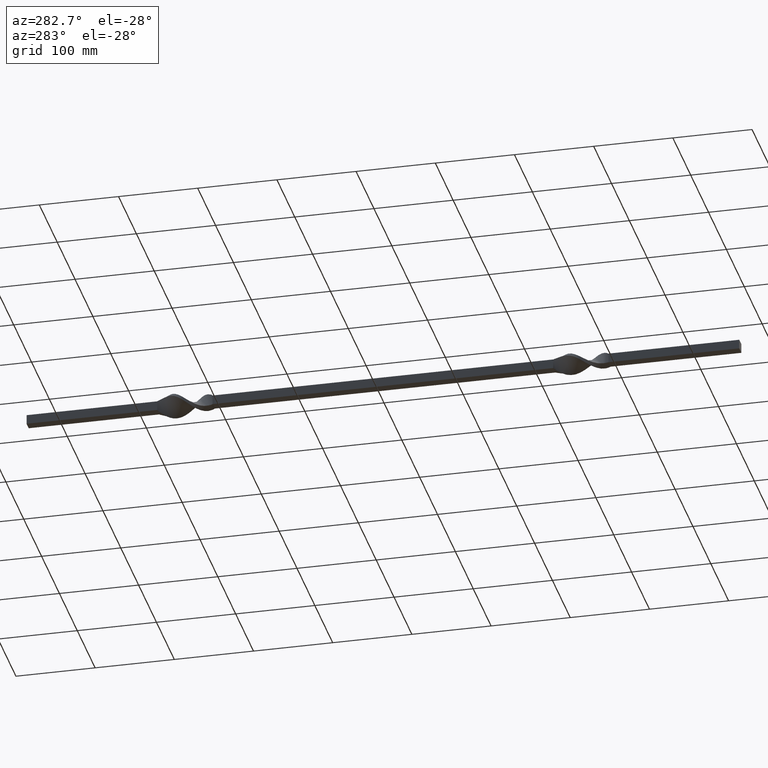
[diagram: clean part render]
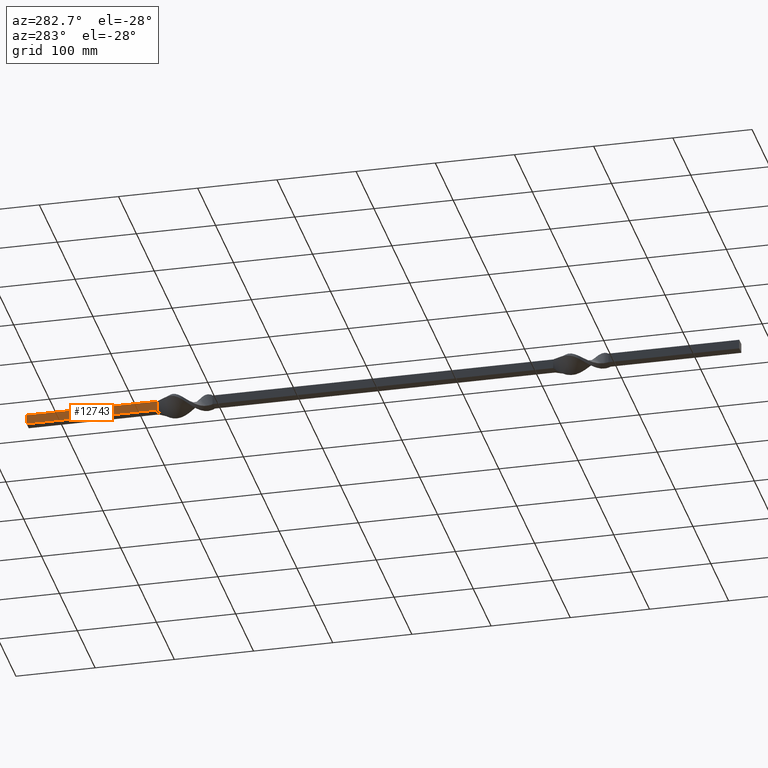
[diagram: same view with one face highlighted and labeled with its STEP entity id]
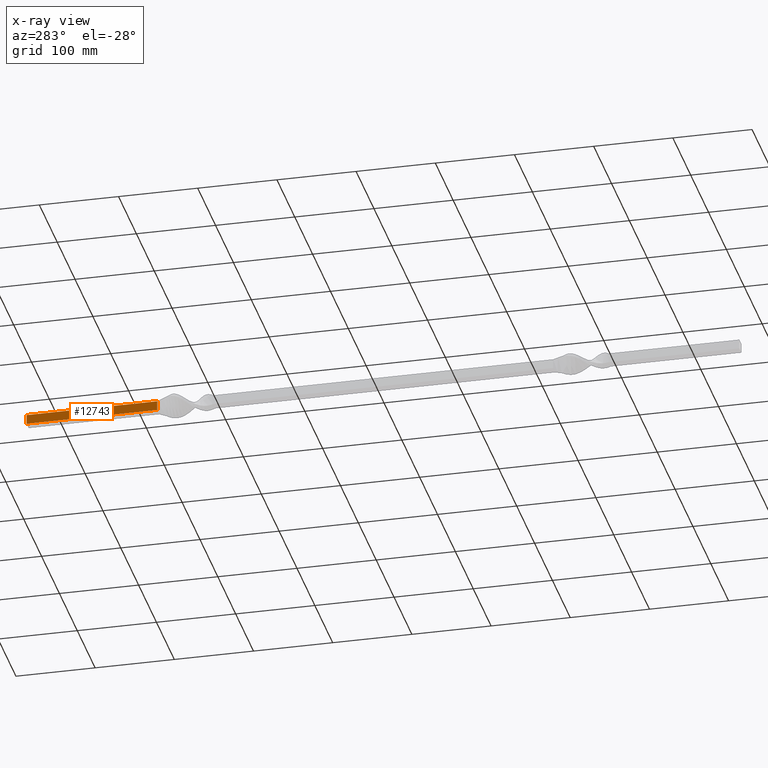
[diagram: x-ray of the same camera — body ghosted, the highlighted face saturated]
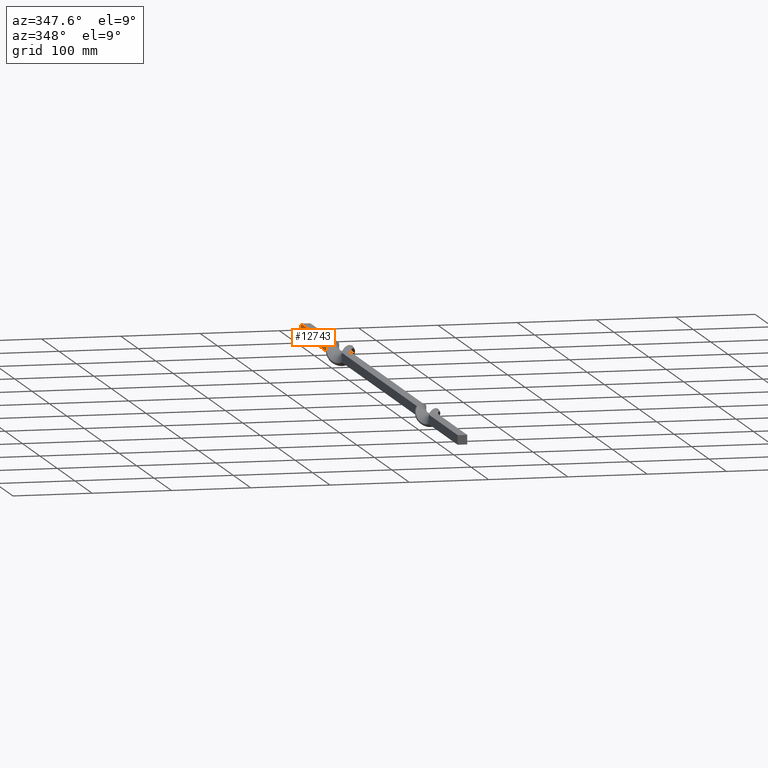
[diagram: same view with one face highlighted and labeled with its STEP entity id]
A machine part, auxiliary view. The second image highlights one B-rep face of the part: STEP entity #12743.
The next image is the same camera in x-ray: the body ghosted, the highlighted face saturated — about 0% of this face is hidden behind the body in this view.
A second angle (auxiliary view) of the same face is appended — the face is thin or edge-on in the first view.
In plain terms, the highlighted planar face has unit normal (1, 0, -0).
Its self-contained STEP definition (entity closure, byte-faithful):
#116 = CARTESIAN_POINT ( 'NONE',  ( -5.999985710682178564, 449.9999999999999432, 6.000014289100389142 ) ) ;
#479 = CARTESIAN_POINT ( 'NONE',  ( -5.999985710682178564, 449.9999999999999432, 6.000014289100389142 ) ) ;
#513 = VECTOR ( 'NONE', #4154, 1000.000000000000000 ) ;
#1558 = LINE ( 'NONE', #5029, #7423 ) ;
#1754 = ORIENTED_EDGE ( 'NONE', *, *, #6881, .F. ) ;
#3202 = LINE ( 'NONE', #116, #513 ) ;
#4154 = DIRECTION ( 'NONE',  ( -0.000000000000000000, -1.000000000000000000, -0.000000000000000000 ) ) ;
#4320 = DIRECTION ( 'NONE',  ( -0.000000000000000000, -1.000000000000000000, -0.000000000000000000 ) ) ;
#5029 = CARTESIAN_POINT ( 'NONE',  ( -6.000014286013064968, 449.9999999999999432, -5.999985710689282215 ) ) ;
#5237 = DIRECTION ( 'NONE',  ( 2.381277573960431425E-06, 0.000000000000000000, 0.9999999999971647124 ) ) ;
#5280 = CARTESIAN_POINT ( 'NONE',  ( -6.000014286013064968, 449.9999999999999432, -5.999985710689282215 ) ) ;
#5409 = VECTOR ( 'NONE', #5237, 1000.000000000000114 ) ;
#5415 = ORIENTED_EDGE ( 'NONE', *, *, #10840, .T. ) ;
#5481 = DIRECTION ( 'NONE',  ( -2.381277573960431425E-06, 0.000000000000000000, -0.9999999999971647124 ) ) ;
#5669 = CARTESIAN_POINT ( 'NONE',  ( -6.000014286013064968, 449.9999999999999432, -5.999985710689282215 ) ) ;
#6122 = ORIENTED_EDGE ( 'NONE', *, *, #9894, .T. ) ;
#6462 = ORIENTED_EDGE ( 'NONE', *, *, #6902, .F. ) ;
#6881 = EDGE_CURVE ( 'NONE', #11113, #8598, #3202, .T. ) ;
#6902 = EDGE_CURVE ( 'NONE', #12241, #11113, #8135, .T. ) ;
#6964 = LINE ( 'NONE', #9181, #11323 ) ;
#7238 = FACE_OUTER_BOUND ( 'NONE', #12201, .T. ) ;
#7423 = VECTOR ( 'NONE', #4320, 1000.000000000000000 ) ;
#8135 = LINE ( 'NONE', #8997, #5409 ) ;
#8598 = VERTEX_POINT ( 'NONE', #12908 ) ;
#8997 = CARTESIAN_POINT ( 'NONE',  ( -6.000014286013064968, 449.9999999999999432, -5.999985710689282215 ) ) ;
#9181 = CARTESIAN_POINT ( 'NONE',  ( -5.999985710689332841, 285.0000000000000000, 6.000014289276699664 ) ) ;
#9894 = EDGE_CURVE ( 'NONE', #10638, #8598, #6964, .T. ) ;
#10511 = DIRECTION ( 'NONE',  ( 2.381548945175569150E-06, -0.000000000000000000, 0.9999999999971640463 ) ) ;
#10638 = VERTEX_POINT ( 'NONE', #12613 ) ;
#10777 = AXIS2_PLACEMENT_3D ( 'NONE', #5669, #11477, #5481 ) ;
#10840 = EDGE_CURVE ( 'NONE', #12241, #10638, #1558, .T. ) ;
#11113 = VERTEX_POINT ( 'NONE', #479 ) ;
#11323 = VECTOR ( 'NONE', #10511, 1000.000000000000227 ) ;
#11477 = DIRECTION ( 'NONE',  ( 0.9999999999971648235, 0.000000000000000000, -2.381277573960431848E-06 ) ) ;
#12201 = EDGE_LOOP ( 'NONE', ( #6122, #1754, #6462, #5415 ) ) ;
#12241 = VERTEX_POINT ( 'NONE', #5280 ) ;
#12613 = CARTESIAN_POINT ( 'NONE',  ( -6.000014286013064968, 285.0000000000000000, -5.999985710689282215 ) ) ;
#12616 = PLANE ( 'NONE',  #10777 ) ;
#12743 = ADVANCED_FACE ( 'NONE', ( #7238 ), #12616, .F. ) ;
#12908 = CARTESIAN_POINT ( 'NONE',  ( -5.999985710682178564, 285.0000000002402771, 6.000014289100389142 ) ) ;